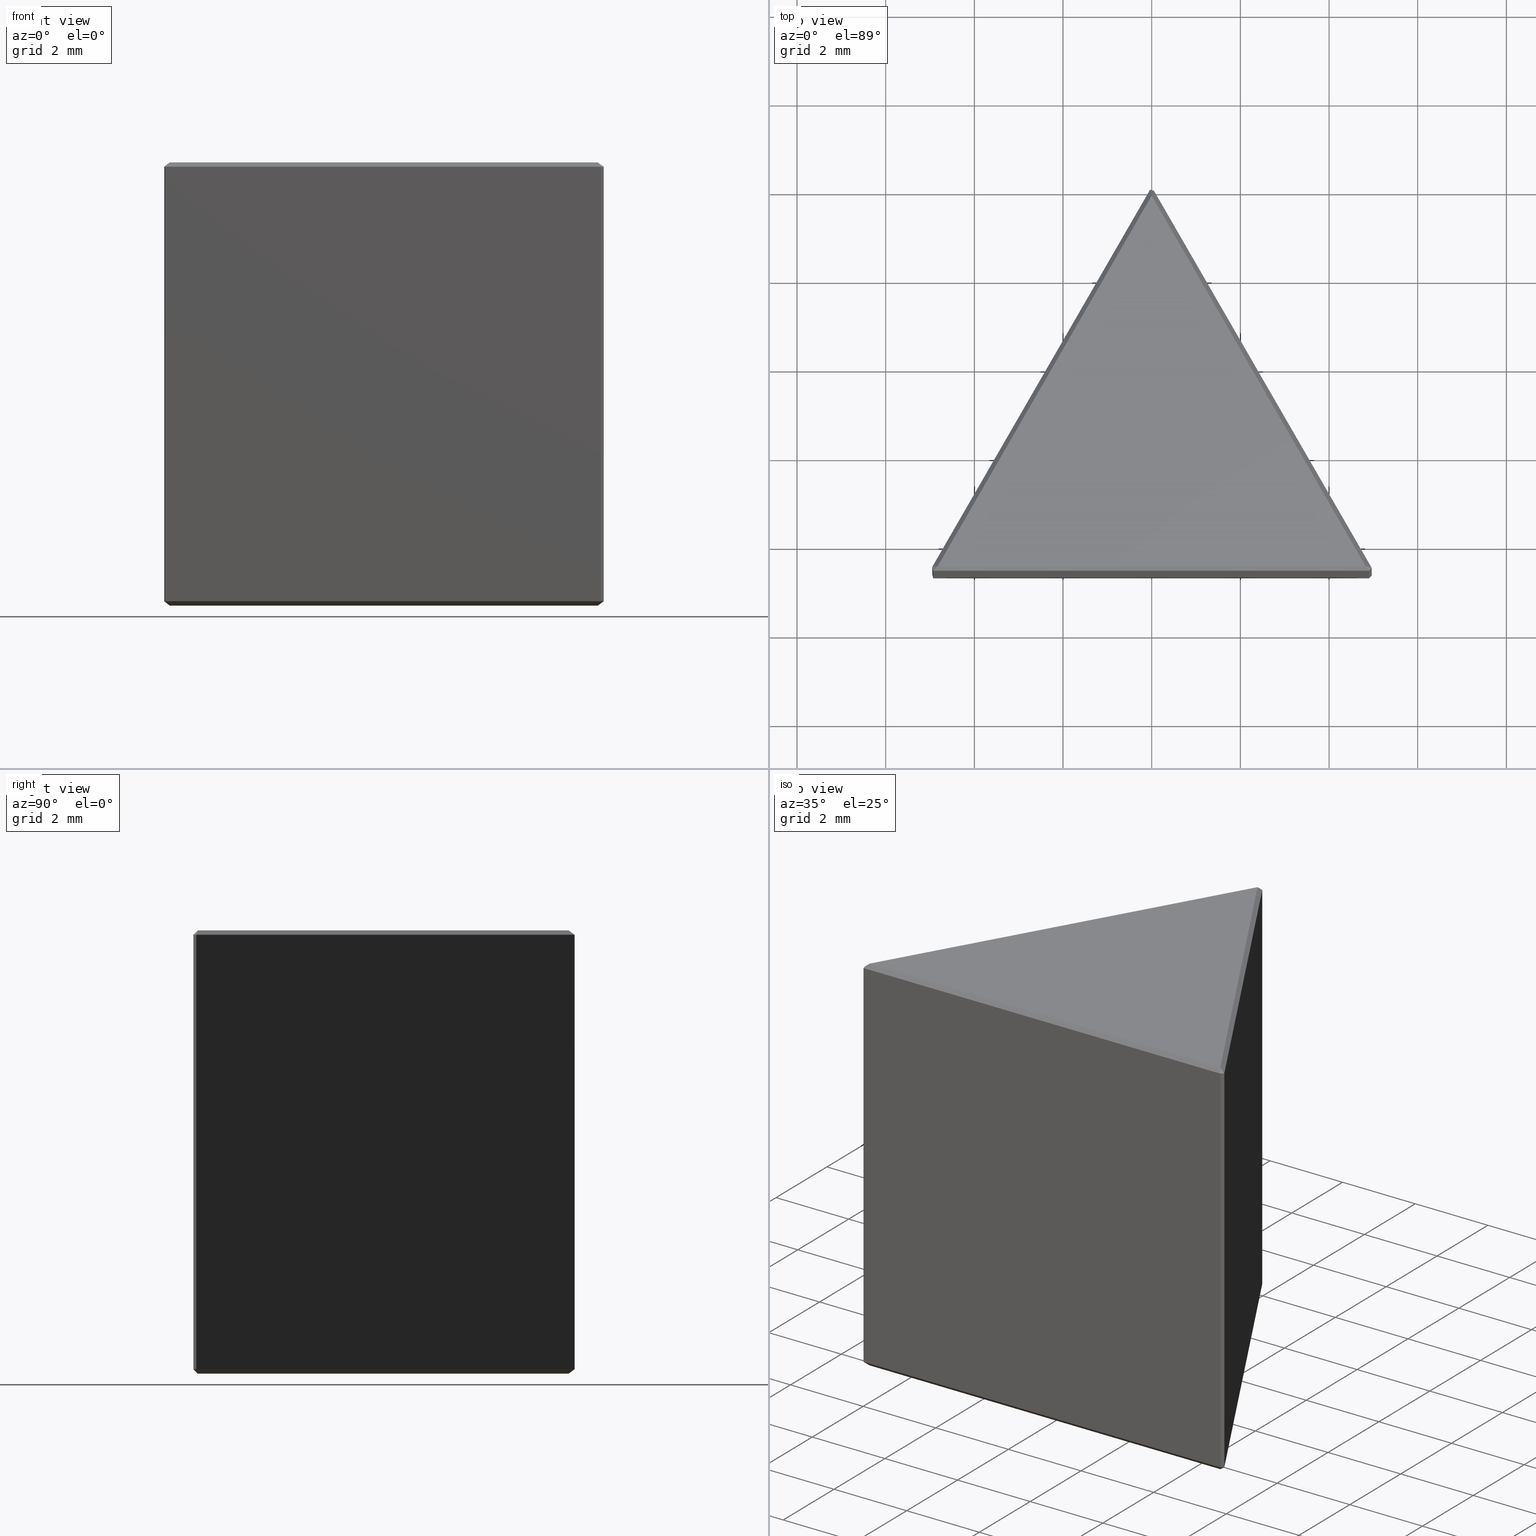
[diagram: canonical four-view strip — front | top / right | iso, engineering-drawing reading convention]
A machine part, canonical four-view strip (front | top / right | iso — engineering-drawing reading convention). The complete STEP part file that produces these views, byte-faithful:
ISO-10303-21;
HEADER;
FILE_DESCRIPTION (( 'STEP AP214' ),
    '1' );
FILE_NAME ('GPD-010-C.STEP',
    '2022-11-08T09:13:15',
    ( '' ),
    ( '' ),
    'SwSTEP 2.0',
    'SolidWorks 2022',
    '' );
FILE_SCHEMA (( 'AUTOMOTIVE_DESIGN' ));
ENDSEC;

DATA;
#1 =( NAMED_UNIT ( * ) SI_UNIT ( $, .STERADIAN. ) SOLID_ANGLE_UNIT ( ) );
#2 = VECTOR ( 'NONE', #62, 999.9999999999998863 ) ;
#3 = ORIENTED_EDGE ( 'NONE', *, *, #272, .T. ) ;
#4 = EDGE_CURVE ( 'NONE', #5, #501, #168, .T. ) ;
#5 = VERTEX_POINT ( 'NONE', #214 ) ;
#6 = ADVANCED_FACE ( 'NONE', ( #479 ), #56, .F. ) ;
#7 = DIRECTION ( 'NONE',  ( 0.000000000000000000, 0.000000000000000000, -1.000000000000000000 ) ) ;
#8 = ORIENTED_EDGE ( 'NONE', *, *, #477, .F. ) ;
#9 = STYLED_ITEM ( 'NONE', ( #371 ), #204 ) ;
#10 = DIRECTION ( 'NONE',  ( 0.000000000000000000, 0.000000000000000000, -1.000000000000000000 ) ) ;
#11 = ADVANCED_FACE ( 'NONE', ( #22 ), #285, .T. ) ;
#12 = ORIENTED_EDGE ( 'NONE', *, *, #83, .F. ) ;
#13 = DIRECTION ( 'NONE',  ( -0.7071067811865523467, 0.7071067811865426878, 0.000000000000000000 ) ) ;
#14 = ORIENTED_EDGE ( 'NONE', *, *, #83, .T. ) ;
#15 = PRODUCT_RELATED_PRODUCT_CATEGORY ( 'part', '', ( #97 ) ) ;
#16 = LINE ( 'NONE', #89, #171 ) ;
#17 = ORIENTED_EDGE ( 'NONE', *, *, #394, .T. ) ;
#18 = CARTESIAN_POINT ( 'NONE',  ( 5.000000000000000000, -8.660254037844387298, 0.09999999999999939493 ) ) ;
#19 = AXIS2_PLACEMENT_3D ( 'NONE', #448, #293, #457 ) ;
#20 = VERTEX_POINT ( 'NONE', #216 ) ;
#21 = DIRECTION ( 'NONE',  ( 0.7886751345948077585, -0.2113248654051742281, -0.5773502691896376104 ) ) ;
#22 = FACE_OUTER_BOUND ( 'NONE', #58, .T. ) ;
#23 = ORIENTED_EDGE ( 'NONE', *, *, #463, .F. ) ;
#24 = DIRECTION ( 'NONE',  ( -0.6109051323707356262, -0.1636915368707561325, 0.7745966692414730792 ) ) ;
#25 = DIRECTION ( 'NONE',  ( 1.000000000000000000, 0.000000000000000000, -0.000000000000000000 ) ) ;
#26 = VECTOR ( 'NONE', #444, 1000.000000000000000 ) ;
#27 = VECTOR ( 'NONE', #427, 1000.000000000000000 ) ;
#28 = DIRECTION ( 'NONE',  ( 0.7851876162409372473, 0.000000000000000000, 0.6192579489210249255 ) ) ;
#29 = FACE_OUTER_BOUND ( 'NONE', #240, .T. ) ;
#30 = EDGE_CURVE ( 'NONE', #381, #426, #358, .T. ) ;
#31 = CARTESIAN_POINT ( 'NONE',  ( 5.000000000000000000, -8.660254037844387298, 0.09999999999999939493 ) ) ;
#32 = LINE ( 'NONE', #335, #399 ) ;
#33 = APPLICATION_PROTOCOL_DEFINITION ( 'draft international standard', 'automotive_design', 1998, #379 ) ;
#34 = DIRECTION ( 'NONE',  ( 0.000000000000000000, 0.000000000000000000, 1.000000000000000000 ) ) ;
#35 = DIRECTION ( 'NONE',  ( 0.000000000000000000, 0.7851876162409597848, 0.6192579489209962817 ) ) ;
#36 = EDGE_CURVE ( 'NONE', #430, #189, #441, .T. ) ;
#37 = EDGE_LOOP ( 'NONE', ( #192, #317, #201 ) ) ;
#38 = ORIENTED_EDGE ( 'NONE', *, *, #454, .T. ) ;
#39 = AXIS2_PLACEMENT_3D ( 'NONE', #242, #84, #483 ) ;
#40 = SURFACE_STYLE_USAGE ( .BOTH. , #384 ) ;
#41 = VECTOR ( 'NONE', #486, 1000.000000000000000 ) ;
#42 = ORIENTED_EDGE ( 'NONE', *, *, #174, .F. ) ;
#43 = DIRECTION ( 'NONE',  ( -0.5000000000000000000, 0.8660254037844385966, 0.000000000000000000 ) ) ;
#44 = EDGE_LOOP ( 'NONE', ( #354, #3, #387 ) ) ;
#45 = CARTESIAN_POINT ( 'NONE',  ( 0.000000000000000000, -8.560254037844385877, 0.000000000000000000 ) ) ;
#46 = ORIENTED_EDGE ( 'NONE', *, *, #359, .T. ) ;
#47 = ORIENTED_EDGE ( 'NONE', *, *, #268, .F. ) ;
#48 =( GEOMETRIC_REPRESENTATION_CONTEXT ( 3 ) GLOBAL_UNCERTAINTY_ASSIGNED_CONTEXT ( ( #499 ) ) GLOBAL_UNIT_ASSIGNED_CONTEXT ( ( #467, #428, #302 ) ) REPRESENTATION_CONTEXT ( 'NONE', 'WORKASPACE' ) );
#49 = ADVANCED_FACE ( 'NONE', ( #206 ), #124, .F. ) ;
#50 = PLANE ( 'NONE',  #464 ) ;
#51 = ORIENTED_EDGE ( 'NONE', *, *, #145, .F. ) ;
#52 = VECTOR ( 'NONE', #456, 999.9999999999998863 ) ;
#53 = LINE ( 'NONE', #357, #396 ) ;
#54 = EDGE_LOOP ( 'NONE', ( #82, #78, #17, #438 ) ) ;
#55 = CARTESIAN_POINT ( 'NONE',  ( -4.926794919243112858, -8.660254037844387298, 9.899999999999998579 ) ) ;
#56 = PLANE ( 'NONE',  #408 ) ;
#57 = CARTESIAN_POINT ( 'NONE',  ( -4.949999999999999289, -8.573651497465942128, 9.899999999999998579 ) ) ;
#58 = EDGE_LOOP ( 'NONE', ( #474, #135, #93, #112 ) ) ;
#59 = DIRECTION ( 'NONE',  ( 0.000000000000000000, 0.000000000000000000, -1.000000000000000000 ) ) ;
#60 = ORIENTED_EDGE ( 'NONE', *, *, #199, .T. ) ;
#61 = CARTESIAN_POINT ( 'NONE',  ( -4.926794919243112858, -8.660254037844387298, 0.09999999999999939493 ) ) ;
#62 = DIRECTION ( 'NONE',  ( -0.5000000000000001110, -0.8660254037844387076, 0.000000000000000000 ) ) ;
#63 = PLANE ( 'NONE',  #19 ) ;
#64 = DIRECTION ( 'NONE',  ( -0.4597008433809920969, 0.6279630301995566821, -0.6279630301995455799 ) ) ;
#65 = AXIS2_PLACEMENT_3D ( 'NONE', #495, #372, #101 ) ;
#66 = FACE_OUTER_BOUND ( 'NONE', #470, .T. ) ;
#67 = LINE ( 'NONE', #266, #155 ) ;
#68 = DIRECTION ( 'NONE',  ( 0.5773502691896190697, 0.5773502691896241767, 0.5773502691896341688 ) ) ;
#69 = PRESENTATION_LAYER_ASSIGNMENT (  '', '', ( #289 ) ) ;
#70 = EDGE_CURVE ( 'NONE', #397, #189, #322, .T. ) ;
#71 =( NAMED_UNIT ( * ) PLANE_ANGLE_UNIT ( ) SI_UNIT ( $, .RADIAN. ) );
#72 = DIRECTION ( 'NONE',  ( -0.7851876162409547888, 0.000000000000000000, 0.6192579489210027210 ) ) ;
#73 = EDGE_LOOP ( 'NONE', ( #345, #410, #8 ) ) ;
#74 = FILL_AREA_STYLE ('',( #418 ) ) ;
#75 = ORIENTED_EDGE ( 'NONE', *, *, #70, .F. ) ;
#76 = VECTOR ( 'NONE', #331, 1000.000000000000114 ) ;
#77 = DIRECTION ( 'NONE',  ( 0.5000000000000000000, -0.8660254037844385966, 0.000000000000000000 ) ) ;
#78 = ORIENTED_EDGE ( 'NONE', *, *, #188, .T. ) ;
#79 = CARTESIAN_POINT ( 'NONE',  ( 0.05000000000000062034, -0.08660254037844491992, 0.09999999999999903411 ) ) ;
#80 = VERTEX_POINT ( 'NONE', #218 ) ;
#81 = DIRECTION ( 'NONE',  ( 0.5000000000000001110, 0.8660254037844385966, 0.000000000000000000 ) ) ;
#82 = ORIENTED_EDGE ( 'NONE', *, *, #463, .T. ) ;
#83 = EDGE_CURVE ( 'NONE', #309, #107, #419, .T. ) ;
#84 = DIRECTION ( 'NONE',  ( 0.9659258262890725311, 0.2588190451025050853, 0.000000000000000000 ) ) ;
#85 = DIRECTION ( 'NONE',  ( 1.000000000000000000, 0.000000000000000000, -0.000000000000000000 ) ) ;
#86 =( GEOMETRIC_REPRESENTATION_CONTEXT ( 3 ) GLOBAL_UNCERTAINTY_ASSIGNED_CONTEXT ( ( #226 ) ) GLOBAL_UNIT_ASSIGNED_CONTEXT ( ( #181, #71, #1 ) ) REPRESENTATION_CONTEXT ( 'NONE', 'WORKASPACE' ) );
#87 = CARTESIAN_POINT ( 'NONE',  ( 0.000000000000000000, -8.560254037844387653, 10.00000000000000000 ) ) ;
#88 = VERTEX_POINT ( 'NONE', #143 ) ;
#89 = CARTESIAN_POINT ( 'NONE',  ( -0.02886751345948138092, -0.09226497308103827344, 9.921132486540518158 ) ) ;
#90 = CARTESIAN_POINT ( 'NONE',  ( 4.963397459621555541, -8.596856578222828560, 0.09999999999999903411 ) ) ;
#91 = PRODUCT_DEFINITION_SHAPE ( 'NONE', 'NONE',  #502 ) ;
#92 = CARTESIAN_POINT ( 'NONE',  ( -0.08660254037844333785, -0.04999999999999970440, 10.00000000000000000 ) ) ;
#93 = ORIENTED_EDGE ( 'NONE', *, *, #348, .F. ) ;
#94 = EDGE_CURVE ( 'NONE', #447, #150, #334, .T. ) ;
#95 = LINE ( 'NONE', #31, #306 ) ;
#96 = FILL_AREA_STYLE_COLOUR ( '', #213 ) ;
#97 = PRODUCT ( 'GPD-010-C', 'GPD-010-C', '', ( #182 ) ) ;
#98 = EDGE_CURVE ( 'NONE', #88, #107, #32, .T. ) ;
#99 = CARTESIAN_POINT ( 'NONE',  ( -4.949999999999999289, -8.573651497465942128, 9.899999999999998579 ) ) ;
#100 = CARTESIAN_POINT ( 'NONE',  ( -5.000000000000000000, -8.660254037844387298, 10.00000000000000000 ) ) ;
#101 = DIRECTION ( 'NONE',  ( 0.000000000000000000, -0.7851876162409402449, 0.6192579489210210397 ) ) ;
#102 = SURFACE_SIDE_STYLE ('',( #294 ) ) ;
#103 = CARTESIAN_POINT ( 'NONE',  ( 4.899999999999998579, -8.660254037844387298, 9.899999999999998579 ) ) ;
#104 = DIRECTION ( 'NONE',  ( 0.000000000000000000, 0.000000000000000000, 1.000000000000000000 ) ) ;
#105 = DIRECTION ( 'NONE',  ( -0.2113248654051791131, 0.7886751345948235237, 0.5773502691896141847 ) ) ;
#106 = CARTESIAN_POINT ( 'NONE',  ( 4.826794919243114101, -8.560254037844387653, 10.00000000000000000 ) ) ;
#107 = VERTEX_POINT ( 'NONE', #300 ) ;
#108 = ORIENTED_EDGE ( 'NONE', *, *, #489, .F. ) ;
#109 = AXIS2_PLACEMENT_3D ( 'NONE', #195, #231, #77 ) ;
#110 = VECTOR ( 'NONE', #68, 1000.000000000000114 ) ;
#111 = FACE_OUTER_BOUND ( 'NONE', #37, .T. ) ;
#112 = ORIENTED_EDGE ( 'NONE', *, *, #443, .F. ) ;
#113 = EDGE_CURVE ( 'NONE', #430, #397, #67, .T. ) ;
#114 = FACE_OUTER_BOUND ( 'NONE', #196, .T. ) ;
#115 = ORIENTED_EDGE ( 'NONE', *, *, #375, .T. ) ;
#116 = ORIENTED_EDGE ( 'NONE', *, *, #70, .T. ) ;
#117 = VECTOR ( 'NONE', #126, 1000.000000000000000 ) ;
#118 = LINE ( 'NONE', #480, #163 ) ;
#119 = ORIENTED_EDGE ( 'NONE', *, *, #443, .T. ) ;
#120 = FACE_OUTER_BOUND ( 'NONE', #425, .T. ) ;
#121 = ORIENTED_EDGE ( 'NONE', *, *, #375, .F. ) ;
#122 = EDGE_CURVE ( 'NONE', #287, #501, #412, .T. ) ;
#123 = DIRECTION ( 'NONE',  ( 0.5000000000000000000, 0.8660254037844385966, 0.000000000000000000 ) ) ;
#124 = PLANE ( 'NONE',  #360 ) ;
#125 = DIRECTION ( 'NONE',  ( -0.5000000000000001110, -0.8660254037844385966, 0.000000000000000000 ) ) ;
#126 = DIRECTION ( 'NONE',  ( 1.000000000000000000, 0.000000000000000000, 0.000000000000000000 ) ) ;
#127 = ORIENTED_EDGE ( 'NONE', *, *, #420, .F. ) ;
#128 = FACE_OUTER_BOUND ( 'NONE', #232, .T. ) ;
#129 = DIRECTION ( 'NONE',  ( 0.000000000000000000, 0.000000000000000000, 1.000000000000000000 ) ) ;
#130 =( GEOMETRIC_REPRESENTATION_CONTEXT ( 3 ) GLOBAL_UNCERTAINTY_ASSIGNED_CONTEXT ( ( #180 ) ) GLOBAL_UNIT_ASSIGNED_CONTEXT ( ( #460, #422, #307 ) ) REPRESENTATION_CONTEXT ( 'NONE', 'WORKASPACE' ) );
#131 = CARTESIAN_POINT ( 'NONE',  ( 4.963397459621555541, -8.596856578222828560, 0.09999999999999903411 ) ) ;
#132 = CARTESIAN_POINT ( 'NONE',  ( -4.913397459621557495, -8.710254037844386232, 10.00000000000000000 ) ) ;
#133 = DIRECTION ( 'NONE',  ( 1.000000000000000000, 0.000000000000000000, 0.000000000000000000 ) ) ;
#134 = DIRECTION ( 'NONE',  ( -1.000000000000000000, 0.000000000000000000, 0.000000000000000000 ) ) ;
#135 = ORIENTED_EDGE ( 'NONE', *, *, #4, .F. ) ;
#136 = LINE ( 'NONE', #103, #27 ) ;
#137 = FILL_AREA_STYLE ('',( #96 ) ) ;
#138 = CARTESIAN_POINT ( 'NONE',  ( -4.949999999999999289, -8.573651497465942128, 9.899999999999998579 ) ) ;
#139 = LINE ( 'NONE', #179, #2 ) ;
#140 = VECTOR ( 'NONE', #478, 1000.000000000000000 ) ;
#141 = VECTOR ( 'NONE', #134, 1000.000000000000000 ) ;
#142 = ADVANCED_FACE ( 'NONE', ( #66 ), #461, .T. ) ;
#143 = CARTESIAN_POINT ( 'NONE',  ( -1.083700895443211318E-15, -0.2000000000000040357, 0.000000000000000000 ) ) ;
#144 = CARTESIAN_POINT ( 'NONE',  ( 0.05000000000000056483, -0.08660254037844497543, 10.00000000000000000 ) ) ;
#145 = EDGE_CURVE ( 'NONE', #107, #381, #139, .T. ) ;
#146 = ORIENTED_EDGE ( 'NONE', *, *, #98, .F. ) ;
#147 = AXIS2_PLACEMENT_3D ( 'NONE', #286, #326, #59 ) ;
#148 = CLOSED_SHELL ( 'NONE', ( #221, #310, #186, #156, #49, #344, #261, #450, #337, #378, #417, #229, #241, #152, #11, #6, #366, #404, #142, #494 ) ) ;
#149 = PRODUCT_DEFINITION_FORMATION_WITH_SPECIFIED_SOURCE ( '�κ�', '', #97, .NOT_KNOWN. ) ;
#150 = VERTEX_POINT ( 'NONE', #458 ) ;
#151 = ORIENTED_EDGE ( 'NONE', *, *, #174, .T. ) ;
#152 = ADVANCED_FACE ( 'NONE', ( #374 ), #264, .T. ) ;
#153 = CARTESIAN_POINT ( 'NONE',  ( 4.963397459621555541, -8.596856578222828560, 0.09999999999999903411 ) ) ;
#154 = ORIENTED_EDGE ( 'NONE', *, *, #359, .F. ) ;
#155 = VECTOR ( 'NONE', #256, 1000.000000000000114 ) ;
#156 = ADVANCED_FACE ( 'NONE', ( #29 ), #367, .T. ) ;
#157 = CARTESIAN_POINT ( 'NONE',  ( 0.05000000000000062728, -0.08660254037844491992, 9.899999999999998579 ) ) ;
#158 = EDGE_LOOP ( 'NONE', ( #166, #202, #383, #356 ) ) ;
#159 = PLANE ( 'NONE',  #39 ) ;
#160 = VERTEX_POINT ( 'NONE', #106 ) ;
#161 = DIRECTION ( 'NONE',  ( 0.2113248654051903264, -0.7886751345948054270, 0.5773502691896348349 ) ) ;
#162 = ORIENTED_EDGE ( 'NONE', *, *, #30, .F. ) ;
#163 = VECTOR ( 'NONE', #239, 1000.000000000000114 ) ;
#164 = PLANE ( 'NONE',  #274 ) ;
#165 = VECTOR ( 'NONE', #173, 1000.000000000000000 ) ;
#166 = ORIENTED_EDGE ( 'NONE', *, *, #122, .F. ) ;
#167 = LINE ( 'NONE', #61, #76 ) ;
#168 = LINE ( 'NONE', #132, #291 ) ;
#169 = FACE_OUTER_BOUND ( 'NONE', #73, .T. ) ;
#170 = ORIENTED_EDGE ( 'NONE', *, *, #279, .T. ) ;
#171 = VECTOR ( 'NONE', #161, 1000.000000000000114 ) ;
#172 = FACE_OUTER_BOUND ( 'NONE', #44, .T. ) ;
#173 = DIRECTION ( 'NONE',  ( 0.000000000000000000, 0.000000000000000000, 1.000000000000000000 ) ) ;
#174 = EDGE_CURVE ( 'NONE', #309, #447, #339, .T. ) ;
#175 = VECTOR ( 'NONE', #314, 1000.000000000000000 ) ;
#176 = CARTESIAN_POINT ( 'NONE',  ( -4.926794919243112858, -8.660254037844387298, 10.00000000000000000 ) ) ;
#177 = DIRECTION ( 'NONE',  ( 0.6123724356957999104, 0.3535533905932768950, 0.7071067811865412445 ) ) ;
#178 = CARTESIAN_POINT ( 'NONE',  ( -5.000000000000000000, -8.660254037844387298, 0.09999999999999939493 ) ) ;
#179 = CARTESIAN_POINT ( 'NONE',  ( 0.000000000000000000, 0.000000000000000000, 0.09999999999999939493 ) ) ;
#180 = UNCERTAINTY_MEASURE_WITH_UNIT (LENGTH_MEASURE( 1.000000000000000082E-05 ), #460, 'distance_accuracy_value', 'NONE');
#181 =( LENGTH_UNIT ( ) NAMED_UNIT ( * ) SI_UNIT ( .MILLI., .METRE. ) );
#182 = PRODUCT_CONTEXT ( 'NONE', #379, 'mechanical' ) ;
#183 = PLANE ( 'NONE',  #236 ) ;
#184 = PLANE ( 'NONE',  #193 ) ;
#185 = VECTOR ( 'NONE', #340, 1000.000000000000000 ) ;
#186 = ADVANCED_FACE ( 'NONE', ( #227 ), #183, .F. ) ;
#187 = CARTESIAN_POINT ( 'NONE',  ( -0.08660254037844333785, -0.04999999999999969746, 10.00000000000000000 ) ) ;
#188 = EDGE_CURVE ( 'NONE', #80, #287, #491, .T. ) ;
#189 = VERTEX_POINT ( 'NONE', #303 ) ;
#190 = CARTESIAN_POINT ( 'NONE',  ( -4.826794919243114101, -8.560254037844387653, 10.00000000000000000 ) ) ;
#191 = DIRECTION ( 'NONE',  ( -0.5773502691896357231, -0.5773502691896257311, 0.5773502691896158501 ) ) ;
#192 = ORIENTED_EDGE ( 'NONE', *, *, #238, .T. ) ;
#193 = AXIS2_PLACEMENT_3D ( 'NONE', #269, #468, #72 ) ;
#194 = VECTOR ( 'NONE', #421, 1000.000000000000227 ) ;
#195 = CARTESIAN_POINT ( 'NONE',  ( 5.000000000000000000, -8.660254037844387298, 10.00000000000000000 ) ) ;
#196 = EDGE_LOOP ( 'NONE', ( #292, #116, #432 ) ) ;
#197 = LINE ( 'NONE', #446, #175 ) ;
#198 = ORIENTED_EDGE ( 'NONE', *, *, #238, .F. ) ;
#199 = EDGE_CURVE ( 'NONE', #271, #381, #497, .T. ) ;
#200 = LINE ( 'NONE', #246, #117 ) ;
#201 = ORIENTED_EDGE ( 'NONE', *, *, #199, .F. ) ;
#202 = ORIENTED_EDGE ( 'NONE', *, *, #188, .F. ) ;
#203 = MECHANICAL_DESIGN_GEOMETRIC_PRESENTATION_REPRESENTATION (  '', ( #289 ), #48 ) ;
#204 = MANIFOLD_SOLID_BREP ( '����1', #148 ) ;
#205 = CARTESIAN_POINT ( 'NONE',  ( 4.899999999999998579, -8.660254037844387298, 9.899999999999998579 ) ) ;
#206 = FACE_OUTER_BOUND ( 'NONE', #210, .T. ) ;
#207 = FACE_OUTER_BOUND ( 'NONE', #158, .T. ) ;
#208 = ORIENTED_EDGE ( 'NONE', *, *, #472, .F. ) ;
#209 = LINE ( 'NONE', #205, #244 ) ;
#210 = EDGE_LOOP ( 'NONE', ( #267, #46, #406 ) ) ;
#211 = VECTOR ( 'NONE', #324, 1000.000000000000227 ) ;
#212 = LINE ( 'NONE', #260, #481 ) ;
#213 = COLOUR_RGB ( '',1.000000000000000000, 1.000000000000000000, 1.000000000000000000 ) ;
#214 = CARTESIAN_POINT ( 'NONE',  ( -5.085960881141425601E-17, -0.1999999999999986511, 10.00000000000000000 ) ) ;
#215 = DIRECTION ( 'NONE',  ( -0.000000000000000000, 0.7071067811865414665, 0.7071067811865536790 ) ) ;
#216 = CARTESIAN_POINT ( 'NONE',  ( -0.03660254037844420938, -0.06339745962155671211, 9.899999999999998579 ) ) ;
#217 = PLANE ( 'NONE',  #407 ) ;
#218 = CARTESIAN_POINT ( 'NONE',  ( 4.899999999999998579, -8.660254037844387298, 9.899999999999998579 ) ) ;
#219 = LINE ( 'NONE', #416, #245 ) ;
#220 = CARTESIAN_POINT ( 'NONE',  ( 0.000000000000000000, 0.000000000000000000, 10.00000000000000000 ) ) ;
#221 = ADVANCED_FACE ( 'NONE', ( #386 ), #424, .F. ) ;
#222 = VECTOR ( 'NONE', #364, 1000.000000000000227 ) ;
#223 = LINE ( 'NONE', #92, #415 ) ;
#224 = ORIENTED_EDGE ( 'NONE', *, *, #113, .F. ) ;
#225 = DIRECTION ( 'NONE',  ( 0.5000000000000000000, -0.8660254037844385966, 0.000000000000000000 ) ) ;
#226 = UNCERTAINTY_MEASURE_WITH_UNIT (LENGTH_MEASURE( 1.000000000000000082E-05 ), #181, 'distance_accuracy_value', 'NONE');
#227 = FACE_OUTER_BOUND ( 'NONE', #54, .T. ) ;
#228 = AXIS2_PLACEMENT_3D ( 'NONE', #153, #400, #283 ) ;
#229 = ADVANCED_FACE ( 'NONE', ( #111 ), #184, .T. ) ;
#230 = LINE ( 'NONE', #380, #185 ) ;
#231 = DIRECTION ( 'NONE',  ( -0.8660254037844387076, -0.5000000000000001110, 0.000000000000000000 ) ) ;
#232 = EDGE_LOOP ( 'NONE', ( #38, #42, #14, #482 ) ) ;
#233 = SURFACE_STYLE_FILL_AREA ( #74 ) ;
#234 = EDGE_LOOP ( 'NONE', ( #276, #313, #243, #121 ) ) ;
#235 = EDGE_CURVE ( 'NONE', #20, #107, #230, .T. ) ;
#236 = AXIS2_PLACEMENT_3D ( 'NONE', #100, #262, #330 ) ;
#237 = ORIENTED_EDGE ( 'NONE', *, *, #500, .F. ) ;
#238 = EDGE_CURVE ( 'NONE', #271, #488, #336, .T. ) ;
#239 = DIRECTION ( 'NONE',  ( 0.5000000000000001110, -0.8660254037844385966, 0.000000000000000000 ) ) ;
#240 = EDGE_LOOP ( 'NONE', ( #392, #327, #281 ) ) ;
#241 = ADVANCED_FACE ( 'NONE', ( #114 ), #429, .T. ) ;
#242 = CARTESIAN_POINT ( 'NONE',  ( -4.926794919243112858, -8.660254037844387298, 10.00000000000000000 ) ) ;
#243 = ORIENTED_EDGE ( 'NONE', *, *, #279, .F. ) ;
#244 = VECTOR ( 'NONE', #280, 999.9999999999998863 ) ;
#245 = VECTOR ( 'NONE', #257, 1000.000000000000000 ) ;
#246 = CARTESIAN_POINT ( 'NONE',  ( 5.000000000000000000, -8.560254037844387653, 10.00000000000000000 ) ) ;
#247 = APPLICATION_CONTEXT ( 'automotive_design' ) ;
#248 = DIRECTION ( 'NONE',  ( 0.6123724356957892523, -0.3535533905932707333, 0.7071067811865536790 ) ) ;
#249 = FACE_OUTER_BOUND ( 'NONE', #234, .T. ) ;
#250 = ORIENTED_EDGE ( 'NONE', *, *, #394, .F. ) ;
#251 = DIRECTION ( 'NONE',  ( -0.5000000000000001110, 0.8660254037844385966, 0.000000000000000000 ) ) ;
#252 = ORIENTED_EDGE ( 'NONE', *, *, #288, .F. ) ;
#253 = CARTESIAN_POINT ( 'NONE',  ( 0.05000000000000062728, -0.08660254037844491992, 9.899999999999998579 ) ) ;
#254 = ORIENTED_EDGE ( 'NONE', *, *, #30, .T. ) ;
#255 = FACE_OUTER_BOUND ( 'NONE', #278, .T. ) ;
#256 = DIRECTION ( 'NONE',  ( -0.7071067811865426878, -0.7071067811865522357, 4.048687686840371813E-15 ) ) ;
#257 = DIRECTION ( 'NONE',  ( 0.000000000000000000, 0.000000000000000000, 1.000000000000000000 ) ) ;
#258 = SURFACE_STYLE_USAGE ( .BOTH. , #102 ) ;
#259 = VECTOR ( 'NONE', #21, 1000.000000000000227 ) ;
#260 = CARTESIAN_POINT ( 'NONE',  ( -2.934208200658514503E-18, -5.082197683525802034E-18, 9.899999999999998579 ) ) ;
#261 = ADVANCED_FACE ( 'NONE', ( #275 ), #159, .F. ) ;
#262 = DIRECTION ( 'NONE',  ( 0.000000000000000000, 1.000000000000000000, 0.000000000000000000 ) ) ;
#263 = DIRECTION ( 'NONE',  ( 1.000000000000000000, 0.000000000000000000, 0.000000000000000000 ) ) ;
#264 = PLANE ( 'NONE',  #388 ) ;
#265 = PRESENTATION_STYLE_ASSIGNMENT (( #40 ) ) ;
#266 = CARTESIAN_POINT ( 'NONE',  ( 4.963397459621555541, -8.596856578222828560, 0.09999999999999903411 ) ) ;
#267 = ORIENTED_EDGE ( 'NONE', *, *, #352, .T. ) ;
#268 = EDGE_CURVE ( 'NONE', #488, #397, #197, .T. ) ;
#269 = CARTESIAN_POINT ( 'NONE',  ( -4.926794919243112858, -8.660254037844387298, 0.09999999999999939493 ) ) ;
#270 = EDGE_LOOP ( 'NONE', ( #254, #119, #319, #347 ) ) ;
#271 = VERTEX_POINT ( 'NONE', #435 ) ;
#272 = EDGE_CURVE ( 'NONE', #5, #447, #395, .T. ) ;
#273 = ORIENTED_EDGE ( 'NONE', *, *, #489, .T. ) ;
#274 = AXIS2_PLACEMENT_3D ( 'NONE', #87, #355, #473 ) ;
#275 = FACE_OUTER_BOUND ( 'NONE', #466, .T. ) ;
#276 = ORIENTED_EDGE ( 'NONE', *, *, #36, .T. ) ;
#277 = CARTESIAN_POINT ( 'NONE',  ( 4.963397459621555541, -8.596856578222828560, 10.00000000000000000 ) ) ;
#278 = EDGE_LOOP ( 'NONE', ( #273, #436, #208 ) ) ;
#279 = EDGE_CURVE ( 'NONE', #309, #88, #53, .T. ) ;
#280 = DIRECTION ( 'NONE',  ( 0.4597008433809659511, -0.6279630301995552388, -0.6279630301995660080 ) ) ;
#281 = ORIENTED_EDGE ( 'NONE', *, *, #433, .T. ) ;
#282 = AXIS2_PLACEMENT_3D ( 'NONE', #18, #389, #43 ) ;
#283 = DIRECTION ( 'NONE',  ( -0.8660254037844433705, 0.000000000000000000, -0.4999999999999917843 ) ) ;
#284 = DIRECTION ( 'NONE',  ( 0.5000000000000000000, 0.8660254037844385966, -0.000000000000000000 ) ) ;
#285 = PLANE ( 'NONE',  #451 ) ;
#286 = CARTESIAN_POINT ( 'NONE',  ( -0.03660254037844420244, -0.06339745962155671211, 10.00000000000000000 ) ) ;
#287 = VERTEX_POINT ( 'NONE', #55 ) ;
#288 = EDGE_CURVE ( 'NONE', #150, #430, #437, .T. ) ;
#289 = STYLED_ITEM ( 'NONE', ( #265 ), #316 ) ;
#290 = CARTESIAN_POINT ( 'NONE',  ( -4.949999999999999289, -8.573651497465942128, 0.09999999999999913125 ) ) ;
#291 = VECTOR ( 'NONE', #125, 1000.000000000000114 ) ;
#292 = ORIENTED_EDGE ( 'NONE', *, *, #113, .T. ) ;
#293 = DIRECTION ( 'NONE',  ( 0.4472135954999703067, -0.4472135954999642005, 0.7745966692414727461 ) ) ;
#294 = SURFACE_STYLE_FILL_AREA ( #137 ) ;
#295 = CARTESIAN_POINT ( 'NONE',  ( 4.899999999999998579, -8.660254037844387298, 0.09999999999999939493 ) ) ;
#296 = DIRECTION ( 'NONE',  ( 0.1636915368707596297, 0.6109051323707070935, -0.7745966692414948396 ) ) ;
#297 = ORIENTED_EDGE ( 'NONE', *, *, #94, .F. ) ;
#298 = VECTOR ( 'NONE', #81, 1000.000000000000114 ) ;
#299 = LINE ( 'NONE', #409, #259 ) ;
#300 = CARTESIAN_POINT ( 'NONE',  ( -0.03660254037844420244, -0.06339745962155671211, 0.09999999999999913125 ) ) ;
#301 = CARTESIAN_POINT ( 'NONE',  ( 5.000000000000000000, -8.660254037844387298, 9.899999999999998579 ) ) ;
#302 =( NAMED_UNIT ( * ) SI_UNIT ( $, .STERADIAN. ) SOLID_ANGLE_UNIT ( ) );
#303 = CARTESIAN_POINT ( 'NONE',  ( 4.826794919243109661, -8.560254037844385877, 0.000000000000000000 ) ) ;
#304 = PRODUCT_DEFINITION_CONTEXT ( 'detailed design', #247, 'design' ) ;
#305 = EDGE_CURVE ( 'NONE', #271, #88, #318, .T. ) ;
#306 = VECTOR ( 'NONE', #487, 999.9999999999998863 ) ;
#307 =( NAMED_UNIT ( * ) SI_UNIT ( $, .STERADIAN. ) SOLID_ANGLE_UNIT ( ) );
#308 = ORIENTED_EDGE ( 'NONE', *, *, #477, .T. ) ;
#309 = VERTEX_POINT ( 'NONE', #79 ) ;
#310 = ADVANCED_FACE ( 'NONE', ( #439 ), #50, .F. ) ;
#311 = ORIENTED_EDGE ( 'NONE', *, *, #94, .T. ) ;
#312 = DIRECTION ( 'NONE',  ( 0.8660254037844387076, -0.5000000000000001110, 0.000000000000000000 ) ) ;
#313 = ORIENTED_EDGE ( 'NONE', *, *, #352, .F. ) ;
#314 = DIRECTION ( 'NONE',  ( 1.000000000000000000, 0.000000000000000000, 0.000000000000000000 ) ) ;
#315 = EDGE_LOOP ( 'NONE', ( #308, #297, #393, #351 ) ) ;
#316 = ADVANCED_BREP_SHAPE_REPRESENTATION ( 'GPD-010-C', ( #204, #328 ), #86 ) ;
#317 = ORIENTED_EDGE ( 'NONE', *, *, #420, .T. ) ;
#318 = LINE ( 'NONE', #321, #298 ) ;
#319 = ORIENTED_EDGE ( 'NONE', *, *, #235, .T. ) ;
#320 = AXIS2_PLACEMENT_3D ( 'NONE', #414, #296, #35 ) ;
#321 = CARTESIAN_POINT ( 'NONE',  ( 0.08660254037844479502, -0.05000000000000055095, 0.000000000000000000 ) ) ;
#322 = LINE ( 'NONE', #401, #377 ) ;
#323 = EDGE_CURVE ( 'NONE', #160, #80, #209, .T. ) ;
#324 = DIRECTION ( 'NONE',  ( 0.2588190451025050853, -0.9659258262890724200, -1.433291761649829607E-17 ) ) ;
#325 = DIRECTION ( 'NONE',  ( -0.6123724356957999104, 0.3535533905932768950, 0.7071067811865412445 ) ) ;
#326 = DIRECTION ( 'NONE',  ( -0.2588190451025237926, -0.9659258262890675351, -0.000000000000000000 ) ) ;
#327 = ORIENTED_EDGE ( 'NONE', *, *, #341, .T. ) ;
#328 = AXIS2_PLACEMENT_3D ( 'NONE', #338, #104, #263 ) ;
#329 = DIRECTION ( 'NONE',  ( 0.5000000000000001110, 0.8660254037844387076, 0.000000000000000000 ) ) ;
#330 = DIRECTION ( 'NONE',  ( 0.000000000000000000, -0.000000000000000000, 1.000000000000000000 ) ) ;
#331 = DIRECTION ( 'NONE',  ( -0.2588190451025050298, 0.9659258262890724200, -2.909567590720877370E-15 ) ) ;
#332 = CARTESIAN_POINT ( 'NONE',  ( -4.941746824526945581, -8.572754037844385167, 0.09330127018922210191 ) ) ;
#333 = PLANE ( 'NONE',  #65 ) ;
#334 = LINE ( 'NONE', #301, #52 ) ;
#335 = CARTESIAN_POINT ( 'NONE',  ( -0.03660254037844420244, -0.06339745962155671211, 0.09999999999999913125 ) ) ;
#336 = LINE ( 'NONE', #382, #370 ) ;
#337 = ADVANCED_FACE ( 'NONE', ( #120 ), #475, .F. ) ;
#338 = CARTESIAN_POINT ( 'NONE',  ( 0.000000000000000000, 0.000000000000000000, 0.000000000000000000 ) ) ;
#339 = LINE ( 'NONE', #144, #165 ) ;
#340 = DIRECTION ( 'NONE',  ( 0.000000000000000000, 0.000000000000000000, -1.000000000000000000 ) ) ;
#341 = EDGE_CURVE ( 'NONE', #501, #160, #200, .T. ) ;
#342 = PRESENTATION_LAYER_ASSIGNMENT (  '', '', ( #9 ) ) ;
#343 = EDGE_LOOP ( 'NONE', ( #151, #311, #469, #115 ) ) ;
#344 = ADVANCED_FACE ( 'NONE', ( #207 ), #164, .T. ) ;
#345 = ORIENTED_EDGE ( 'NONE', *, *, #323, .T. ) ;
#346 = DIRECTION ( 'NONE',  ( -0.3139815150997799509, -0.7120941236088510484, -0.6279630301995405839 ) ) ;
#347 = ORIENTED_EDGE ( 'NONE', *, *, #145, .T. ) ;
#348 = EDGE_CURVE ( 'NONE', #20, #5, #16, .T. ) ;
#349 = CARTESIAN_POINT ( 'NONE',  ( 0.000000000000000000, 0.000000000000000000, 10.00000000000000000 ) ) ;
#350 = ORIENTED_EDGE ( 'NONE', *, *, #98, .T. ) ;
#351 = ORIENTED_EDGE ( 'NONE', *, *, #433, .F. ) ;
#352 = EDGE_CURVE ( 'NONE', #88, #189, #118, .T. ) ;
#353 = CARTESIAN_POINT ( 'NONE',  ( 4.963397459621555541, -8.596856578222828560, 10.00000000000000000 ) ) ;
#354 = ORIENTED_EDGE ( 'NONE', *, *, #348, .T. ) ;
#355 = DIRECTION ( 'NONE',  ( 0.000000000000000000, -0.7071067811865536790, 0.7071067811865414665 ) ) ;
#356 = ORIENTED_EDGE ( 'NONE', *, *, #341, .F. ) ;
#357 = CARTESIAN_POINT ( 'NONE',  ( 0.04665063509461123831, -0.09419872981077902219, 0.09330127018922121374 ) ) ;
#358 = LINE ( 'NONE', #453, #41 ) ;
#359 = EDGE_CURVE ( 'NONE', #189, #271, #391, .T. ) ;
#360 = AXIS2_PLACEMENT_3D ( 'NONE', #484, #129, #85 ) ;
#361 = LINE ( 'NONE', #455, #465 ) ;
#362 = CARTESIAN_POINT ( 'NONE',  ( 0.000000000000000000, 0.000000000000000000, 0.09999999999999939493 ) ) ;
#363 = LINE ( 'NONE', #176, #423 ) ;
#364 = DIRECTION ( 'NONE',  ( -0.7886751345948216363, 0.2113248654051831377, -0.5773502691896152950 ) ) ;
#365 = DIRECTION ( 'NONE',  ( 0.7736823584807520637, 0.08413109340926815116, 0.6279630301995667852 ) ) ;
#366 = ADVANCED_FACE ( 'NONE', ( #249 ), #402, .F. ) ;
#367 = PLANE ( 'NONE',  #398 ) ;
#368 = VECTOR ( 'NONE', #365, 1000.000000000000114 ) ;
#369 = DIRECTION ( 'NONE',  ( 0.9659258262890674240, -0.2588190451025237371, 6.747812811400846156E-16 ) ) ;
#370 = VECTOR ( 'NONE', #191, 999.9999999999998863 ) ;
#371 = PRESENTATION_STYLE_ASSIGNMENT (( #258 ) ) ;
#372 = DIRECTION ( 'NONE',  ( 0.1636915368707669016, 0.6109051323707307413, 0.7745966692414746335 ) ) ;
#373 = CARTESIAN_POINT ( 'NONE',  ( -5.000000000000000000, -8.660254037844387298, 9.899999999999998579 ) ) ;
#374 = FACE_OUTER_BOUND ( 'NONE', #315, .T. ) ;
#375 = EDGE_CURVE ( 'NONE', #430, #309, #95, .T. ) ;
#376 = CARTESIAN_POINT ( 'NONE',  ( -0.03660254037844420244, -0.06339745962155671211, 0.09999999999999913125 ) ) ;
#377 = VECTOR ( 'NONE', #64, 999.9999999999998863 ) ;
#378 = ADVANCED_FACE ( 'NONE', ( #169 ), #63, .T. ) ;
#379 = APPLICATION_CONTEXT ( 'automotive_design' ) ;
#380 = CARTESIAN_POINT ( 'NONE',  ( -0.03660254037844420244, -0.06339745962155671211, 10.00000000000000000 ) ) ;
#381 = VERTEX_POINT ( 'NONE', #290 ) ;
#382 = CARTESIAN_POINT ( 'NONE',  ( -4.926794919243112858, -8.660254037844387298, 0.09999999999999939493 ) ) ;
#383 = ORIENTED_EDGE ( 'NONE', *, *, #323, .F. ) ;
#384 = SURFACE_SIDE_STYLE ('',( #233 ) ) ;
#385 = COLOUR_RGB ( '',1.000000000000000000, 1.000000000000000000, 1.000000000000000000 ) ;
#386 = FACE_OUTER_BOUND ( 'NONE', #343, .T. ) ;
#387 = ORIENTED_EDGE ( 'NONE', *, *, #454, .F. ) ;
#388 = AXIS2_PLACEMENT_3D ( 'NONE', #187, #177, #225 ) ;
#389 = DIRECTION ( 'NONE',  ( -0.6123724356957840342, -0.3535533905932677357, 0.7071067811865597852 ) ) ;
#390 = ORIENTED_EDGE ( 'NONE', *, *, #305, .F. ) ;
#391 = LINE ( 'NONE', #45, #26 ) ;
#392 = ORIENTED_EDGE ( 'NONE', *, *, #4, .T. ) ;
#393 = ORIENTED_EDGE ( 'NONE', *, *, #272, .F. ) ;
#394 = EDGE_CURVE ( 'NONE', #287, #488, #363, .T. ) ;
#395 = LINE ( 'NONE', #157, #140 ) ;
#396 = VECTOR ( 'NONE', #346, 1000.000000000000114 ) ;
#397 = VERTEX_POINT ( 'NONE', #295 ) ;
#398 = AXIS2_PLACEMENT_3D ( 'NONE', #220, #34, #25 ) ;
#399 = VECTOR ( 'NONE', #105, 1000.000000000000000 ) ;
#400 = DIRECTION ( 'NONE',  ( 0.4472135954999524321, -0.4472135954999507113, -0.7745966692414907317 ) ) ;
#401 = CARTESIAN_POINT ( 'NONE',  ( 4.895096189432332601, -8.653555308033608284, 0.09330127018922114435 ) ) ;
#402 = PLANE ( 'NONE',  #282 ) ;
#403 = CARTESIAN_POINT ( 'NONE',  ( 0.08660254037844332398, -0.04999999999999969053, 10.00000000000000000 ) ) ;
#404 = ADVANCED_FACE ( 'NONE', ( #172 ), #333, .T. ) ;
#405 = PLANE ( 'NONE',  #431 ) ;
#406 = ORIENTED_EDGE ( 'NONE', *, *, #305, .T. ) ;
#407 = AXIS2_PLACEMENT_3D ( 'NONE', #178, #215, #133 ) ;
#408 = AXIS2_PLACEMENT_3D ( 'NONE', #362, #248, #445 ) ;
#409 = CARTESIAN_POINT ( 'NONE',  ( 4.934529946162074410, -8.589121551303867008, 9.921132486540518158 ) ) ;
#410 = ORIENTED_EDGE ( 'NONE', *, *, #500, .T. ) ;
#411 = FACE_OUTER_BOUND ( 'NONE', #476, .T. ) ;
#412 = LINE ( 'NONE', #498, #110 ) ;
#413 = PLANE ( 'NONE',  #147 ) ;
#414 = CARTESIAN_POINT ( 'NONE',  ( -0.03660254037844420244, -0.06339745962155671211, 0.09999999999999913125 ) ) ;
#415 = VECTOR ( 'NONE', #251, 1000.000000000000114 ) ;
#416 = CARTESIAN_POINT ( 'NONE',  ( 4.899999999999998579, -8.660254037844387298, 10.00000000000000000 ) ) ;
#417 = ADVANCED_FACE ( 'NONE', ( #255 ), #405, .T. ) ;
#418 = FILL_AREA_STYLE_COLOUR ( '', #385 ) ;
#419 = LINE ( 'NONE', #376, #194 ) ;
#420 = EDGE_CURVE ( 'NONE', #488, #381, #167, .T. ) ;
#421 = DIRECTION ( 'NONE',  ( -0.9659258262890674240, 0.2588190451025237371, 1.855534740682983873E-15 ) ) ;
#422 =( NAMED_UNIT ( * ) PLANE_ANGLE_UNIT ( ) SI_UNIT ( $, .RADIAN. ) );
#423 = VECTOR ( 'NONE', #452, 1000.000000000000000 ) ;
#424 = PLANE ( 'NONE',  #109 ) ;
#425 = EDGE_LOOP ( 'NONE', ( #237, #23, #224, #252 ) ) ;
#426 = VERTEX_POINT ( 'NONE', #57 ) ;
#427 = DIRECTION ( 'NONE',  ( 0.7071067811865426878, 0.7071067811865524577, -2.866583523299665378E-17 ) ) ;
#428 =( NAMED_UNIT ( * ) PLANE_ANGLE_UNIT ( ) SI_UNIT ( $, .RADIAN. ) );
#429 = PLANE ( 'NONE',  #228 ) ;
#430 = VERTEX_POINT ( 'NONE', #131 ) ;
#431 = AXIS2_PLACEMENT_3D ( 'NONE', #485, #24, #28 ) ;
#432 = ORIENTED_EDGE ( 'NONE', *, *, #36, .F. ) ;
#433 = EDGE_CURVE ( 'NONE', #160, #5, #223, .T. ) ;
#434 = VECTOR ( 'NONE', #493, 1000.000000000000227 ) ;
#435 = CARTESIAN_POINT ( 'NONE',  ( -4.826794919243110549, -8.560254037844385877, 0.000000000000000000 ) ) ;
#436 = ORIENTED_EDGE ( 'NONE', *, *, #122, .T. ) ;
#437 = LINE ( 'NONE', #277, #440 ) ;
#438 = ORIENTED_EDGE ( 'NONE', *, *, #268, .T. ) ;
#439 = FACE_OUTER_BOUND ( 'NONE', #270, .T. ) ;
#440 = VECTOR ( 'NONE', #10, 1000.000000000000000 ) ;
#441 = LINE ( 'NONE', #90, #222 ) ;
#442 = MECHANICAL_DESIGN_GEOMETRIC_PRESENTATION_REPRESENTATION (  '', ( #9 ), #130 ) ;
#443 = EDGE_CURVE ( 'NONE', #426, #20, #212, .T. ) ;
#444 = DIRECTION ( 'NONE',  ( -1.000000000000000000, 0.000000000000000000, 0.000000000000000000 ) ) ;
#445 = DIRECTION ( 'NONE',  ( -0.5000000000000000000, -0.8660254037844385966, 0.000000000000000000 ) ) ;
#446 = CARTESIAN_POINT ( 'NONE',  ( -5.000000000000000000, -8.660254037844387298, 0.09999999999999939493 ) ) ;
#447 = VERTEX_POINT ( 'NONE', #253 ) ;
#448 = CARTESIAN_POINT ( 'NONE',  ( 4.899999999999998579, -8.660254037844387298, 9.899999999999998579 ) ) ;
#449 = EDGE_LOOP ( 'NONE', ( #60, #51, #146, #390 ) ) ;
#450 = ADVANCED_FACE ( 'NONE', ( #411 ), #217, .F. ) ;
#451 = AXIS2_PLACEMENT_3D ( 'NONE', #403, #325, #284 ) ;
#452 = DIRECTION ( 'NONE',  ( 0.000000000000000000, 0.000000000000000000, -1.000000000000000000 ) ) ;
#453 = CARTESIAN_POINT ( 'NONE',  ( -4.949999999999999289, -8.573651497465942128, 10.00000000000000000 ) ) ;
#454 = EDGE_CURVE ( 'NONE', #20, #447, #361, .T. ) ;
#455 = CARTESIAN_POINT ( 'NONE',  ( 0.05000000000000062728, -0.08660254037844491992, 9.899999999999998579 ) ) ;
#456 = DIRECTION ( 'NONE',  ( 0.5000000000000001110, -0.8660254037844387076, -0.000000000000000000 ) ) ;
#457 = DIRECTION ( 'NONE',  ( 0.8660254037844297148, 0.000000000000000000, -0.5000000000000155431 ) ) ;
#458 = CARTESIAN_POINT ( 'NONE',  ( 4.963397459621555541, -8.596856578222828560, 9.899999999999998579 ) ) ;
#459 = CARTESIAN_POINT ( 'NONE',  ( -4.926794919243112858, -8.660254037844387298, 0.09999999999999939493 ) ) ;
#460 =( LENGTH_UNIT ( ) NAMED_UNIT ( * ) SI_UNIT ( .MILLI., .METRE. ) );
#461 = PLANE ( 'NONE',  #320 ) ;
#462 = SHAPE_DEFINITION_REPRESENTATION ( #91, #316 ) ;
#463 = EDGE_CURVE ( 'NONE', #397, #80, #219, .T. ) ;
#464 = AXIS2_PLACEMENT_3D ( 'NONE', #349, #312, #123 ) ;
#465 = VECTOR ( 'NONE', #369, 1000.000000000000227 ) ;
#466 = EDGE_LOOP ( 'NONE', ( #127, #250, #108, #162 ) ) ;
#467 =( LENGTH_UNIT ( ) NAMED_UNIT ( * ) SI_UNIT ( .MILLI., .METRE. ) );
#468 = DIRECTION ( 'NONE',  ( -0.6109051323707140879, -0.1636915368707526630, -0.7745966692414908428 ) ) ;
#469 = ORIENTED_EDGE ( 'NONE', *, *, #288, .T. ) ;
#470 = EDGE_LOOP ( 'NONE', ( #170, #350, #12 ) ) ;
#471 = AXIS2_PLACEMENT_3D ( 'NONE', #353, #13, #7 ) ;
#472 = EDGE_CURVE ( 'NONE', #426, #501, #492, .T. ) ;
#473 = DIRECTION ( 'NONE',  ( -1.000000000000000000, 0.000000000000000000, 0.000000000000000000 ) ) ;
#474 = ORIENTED_EDGE ( 'NONE', *, *, #472, .T. ) ;
#475 = PLANE ( 'NONE',  #471 ) ;
#476 = EDGE_LOOP ( 'NONE', ( #75, #47, #198, #154 ) ) ;
#477 = EDGE_CURVE ( 'NONE', #160, #150, #299, .T. ) ;
#478 = DIRECTION ( 'NONE',  ( 0.3139815150997828930, 0.7120941236088286219, -0.6279630301995645647 ) ) ;
#479 = FACE_OUTER_BOUND ( 'NONE', #449, .T. ) ;
#480 = CARTESIAN_POINT ( 'NONE',  ( -0.08660254037844636321, -0.05000000000000144607, 0.000000000000000000 ) ) ;
#481 = VECTOR ( 'NONE', #329, 999.9999999999998863 ) ;
#482 = ORIENTED_EDGE ( 'NONE', *, *, #235, .F. ) ;
#483 = DIRECTION ( 'NONE',  ( 0.000000000000000000, 0.000000000000000000, -1.000000000000000000 ) ) ;
#484 = CARTESIAN_POINT ( 'NONE',  ( 0.000000000000000000, 0.000000000000000000, 0.000000000000000000 ) ) ;
#485 = CARTESIAN_POINT ( 'NONE',  ( -4.949999999999999289, -8.573651497465942128, 9.899999999999998579 ) ) ;
#486 = DIRECTION ( 'NONE',  ( 0.000000000000000000, 0.000000000000000000, 1.000000000000000000 ) ) ;
#487 = DIRECTION ( 'NONE',  ( -0.5000000000000001110, 0.8660254037844387076, 0.000000000000000000 ) ) ;
#488 = VERTEX_POINT ( 'NONE', #459 ) ;
#489 = EDGE_CURVE ( 'NONE', #426, #287, #490, .T. ) ;
#490 = LINE ( 'NONE', #99, #211 ) ;
#491 = LINE ( 'NONE', #373, #141 ) ;
#492 = LINE ( 'NONE', #138, #368 ) ;
#493 = DIRECTION ( 'NONE',  ( -0.7736823584807662746, -0.08413109340929041113, 0.6279630301995462460 ) ) ;
#494 = ADVANCED_FACE ( 'NONE', ( #128 ), #413, .F. ) ;
#495 = CARTESIAN_POINT ( 'NONE',  ( 0.05000000000000062728, -0.08660254037844491992, 9.899999999999998579 ) ) ;
#496 = APPLICATION_PROTOCOL_DEFINITION ( 'draft international standard', 'automotive_design', 1998, #247 ) ;
#497 = LINE ( 'NONE', #332, #434 ) ;
#498 = CARTESIAN_POINT ( 'NONE',  ( -4.905662432702594167, -8.639121551303865942, 9.921132486540518158 ) ) ;
#499 = UNCERTAINTY_MEASURE_WITH_UNIT (LENGTH_MEASURE( 1.000000000000000082E-05 ), #467, 'distance_accuracy_value', 'NONE');
#500 = EDGE_CURVE ( 'NONE', #80, #150, #136, .T. ) ;
#501 = VERTEX_POINT ( 'NONE', #190 ) ;
#502 = PRODUCT_DEFINITION ( 'δ֪', '', #149, #304 ) ;
ENDSEC;
END-ISO-10303-21;
